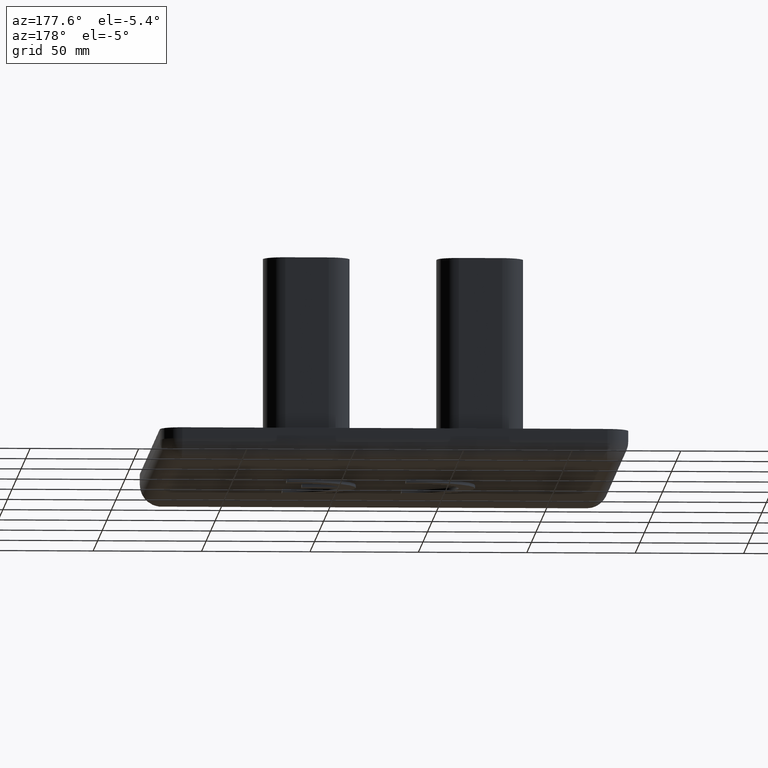
[diagram: clean part render]
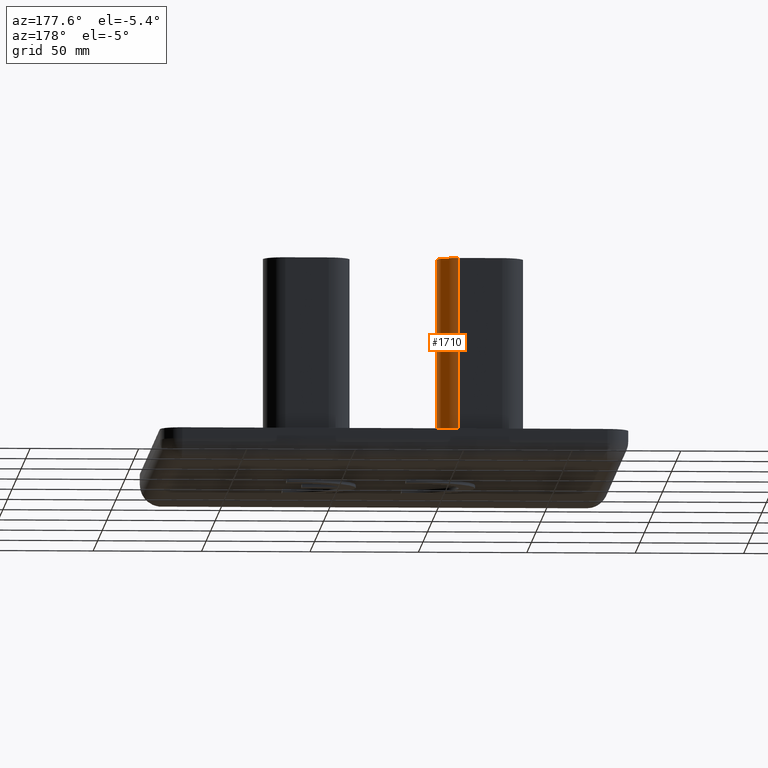
[diagram: same view with one face highlighted and labeled with its STEP entity id]
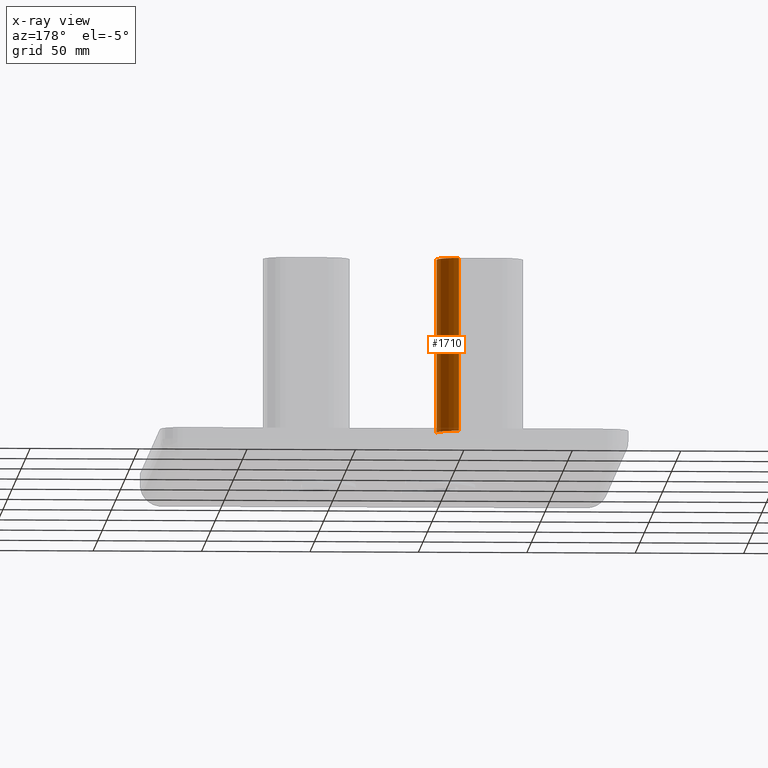
[diagram: x-ray of the same camera — body ghosted, the highlighted face saturated]
A machine part, auxiliary view. The second image highlights one B-rep face of the part: STEP entity #1710.
The next image is the same camera in x-ray: the body ghosted, the highlighted face saturated — about 0% of this face is hidden behind the body in this view.
In plain terms, the highlighted cylindrical surface (edge-blend (fillet) strip) has radius 10 mm, axis along (0, 0, 1).
Its self-contained STEP definition (entity closure, byte-faithful):
#864=CARTESIAN_POINT('',(-153.30096754634272,216.64077403626658,15.000000000000002));
#865=VERTEX_POINT('',#864);
#872=CARTESIAN_POINT('',(-143.35301778858974,205.621806118606,15.000000000000002));
#873=VERTEX_POINT('',#872);
#874=CARTESIAN_POINT('',(-153.30096754634272,206.64077403626658,15.000000000000002));
#875=DIRECTION('',(0.0,0.0,-1.0));
#876=DIRECTION('',(-0.994794975775302,0.101896791766061,0.0));
#877=AXIS2_PLACEMENT_3D('',#874,#875,#876);
#878=CIRCLE('',#877,10.0);
#879=EDGE_CURVE('',#865,#873,#878,.T.);
#1597=CARTESIAN_POINT('',(-153.30096754634272,216.64077403626658,95.000000000000028));
#1598=VERTEX_POINT('',#1597);
#1625=CARTESIAN_POINT('',(-143.35301778858974,205.621806118606,95.000000000000028));
#1626=VERTEX_POINT('',#1625);
#1633=CARTESIAN_POINT('',(-153.30096754634272,206.64077403626658,95.000000000000028));
#1634=DIRECTION('',(0.0,0.0,-1.0));
#1635=DIRECTION('',(-0.994794975775302,0.101896791766061,0.0));
#1636=AXIS2_PLACEMENT_3D('',#1633,#1634,#1635);
#1637=CIRCLE('',#1636,10.0);
#1638=EDGE_CURVE('',#1598,#1626,#1637,.T.);
#1649=CARTESIAN_POINT('',(-153.30096754634272,216.64077403626658,15.000000000000002));
#1650=DIRECTION('',(0.0,0.0,1.0));
#1651=VECTOR('',#1650,80.000000000000028);
#1652=LINE('',#1649,#1651);
#1653=EDGE_CURVE('',#865,#1598,#1652,.T.);
#1694=CARTESIAN_POINT('',(-153.30096754634272,206.64077403626658,15.000000000000002));
#1695=DIRECTION('',(0.0,0.0,1.0));
#1696=DIRECTION('',(-0.994794975775302,0.101896791766061,0.0));
#1697=AXIS2_PLACEMENT_3D('',#1694,#1695,#1696);
#1698=CYLINDRICAL_SURFACE('',#1697,10.000000000000002);
#1699=CARTESIAN_POINT('',(-143.35301778858974,205.621806118606,15.000000000000002));
#1700=DIRECTION('',(0.0,0.0,1.0));
#1701=VECTOR('',#1700,80.000000000000028);
#1702=LINE('',#1699,#1701);
#1703=EDGE_CURVE('',#873,#1626,#1702,.T.);
#1704=ORIENTED_EDGE('',*,*,#1703,.F.);
#1705=ORIENTED_EDGE('',*,*,#879,.F.);
#1706=ORIENTED_EDGE('',*,*,#1653,.T.);
#1707=ORIENTED_EDGE('',*,*,#1638,.T.);
#1708=EDGE_LOOP('',(#1704,#1705,#1706,#1707));
#1709=FACE_OUTER_BOUND('',#1708,.T.);
#1710=ADVANCED_FACE('',(#1709),#1698,.T.);